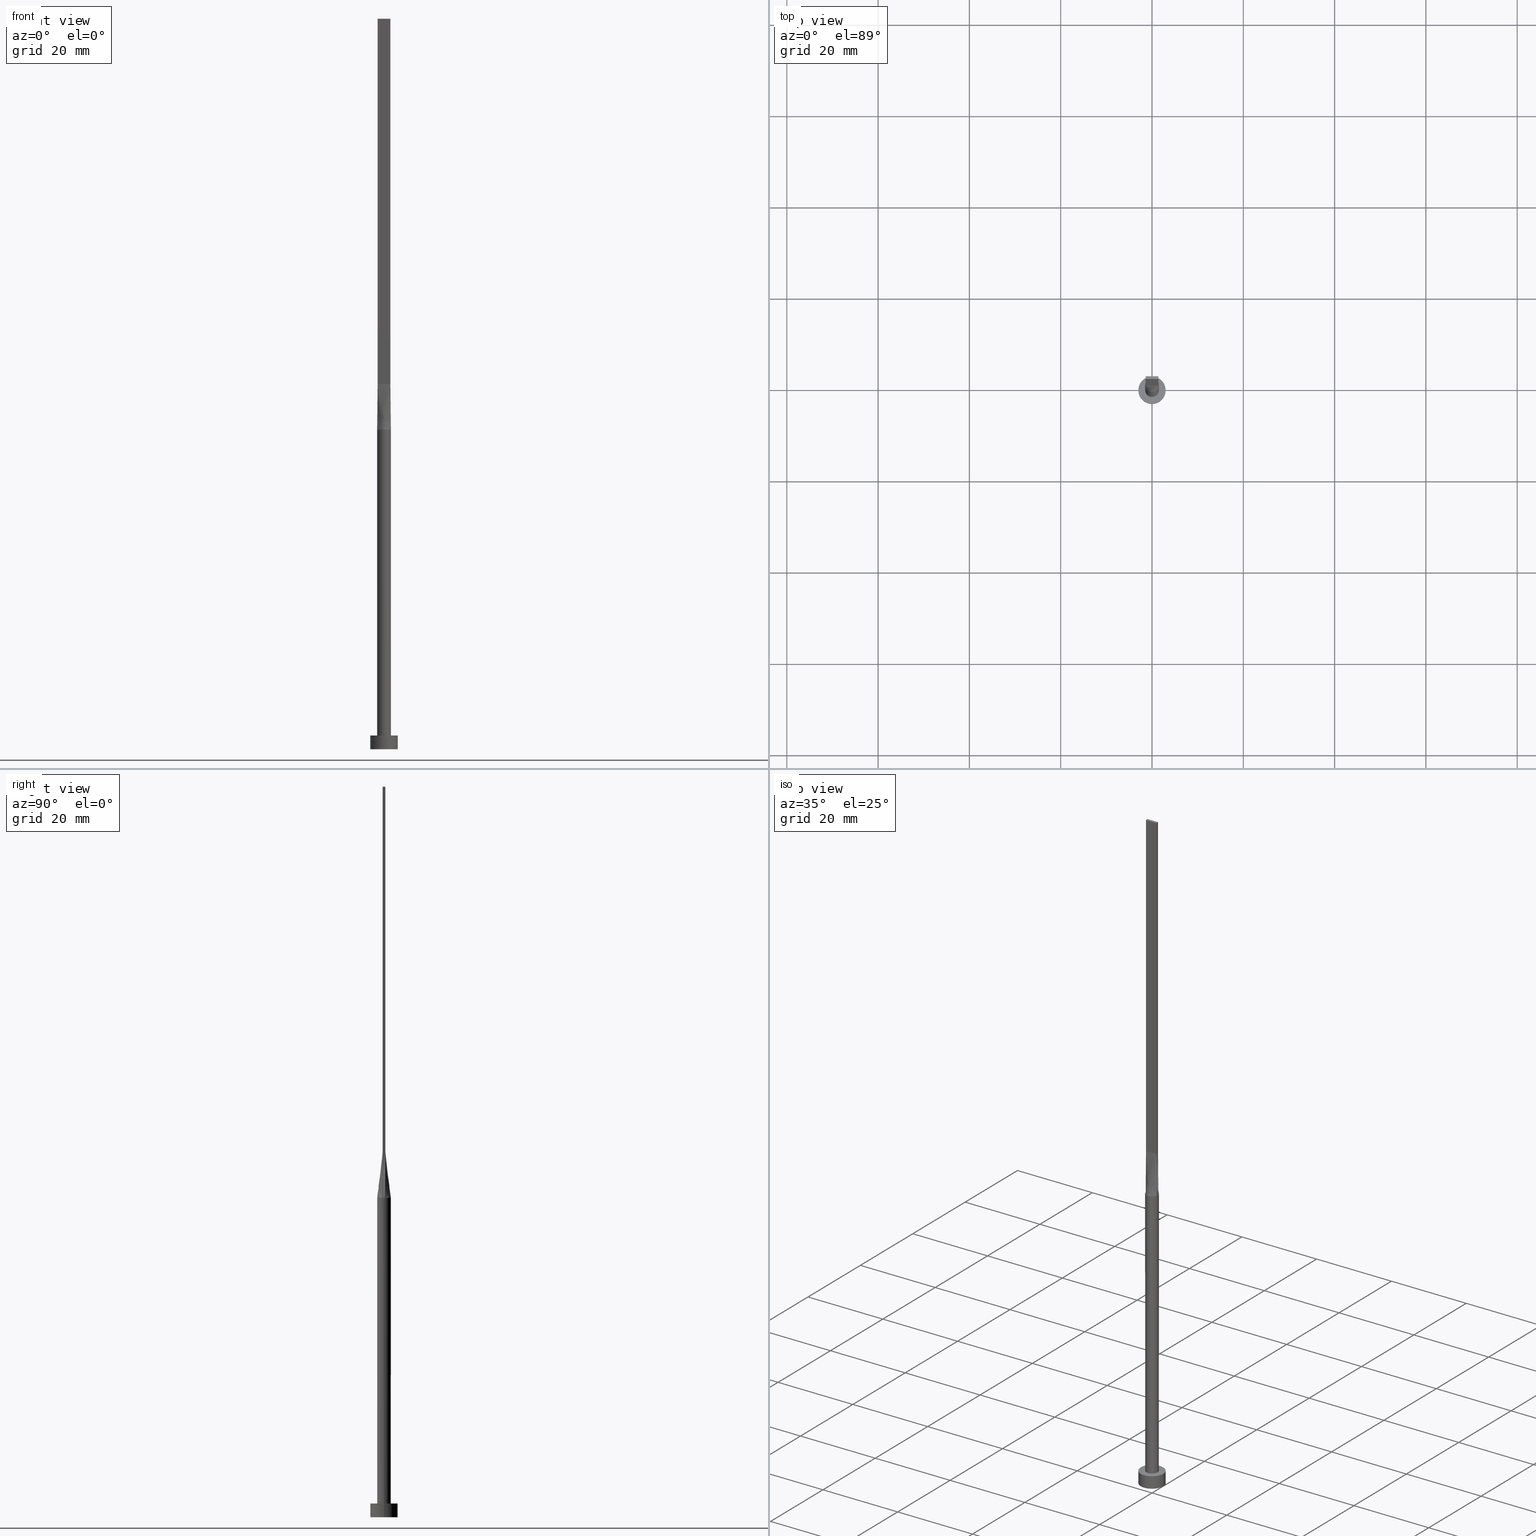
[diagram: canonical four-view strip — front | top / right | iso, engineering-drawing reading convention]
A machine part, canonical four-view strip (front | top / right | iso — engineering-drawing reading convention). The complete STEP part file that produces these views, byte-faithful:
ISO-10303-21;
HEADER;
FILE_DESCRIPTION (( 'STEP AP203' ),
    '1' );
FILE_NAME ('74a3.STEP',
    '2026-02-12T09:00:19',
    ( '' ),
    ( '' ),
    'SwSTEP 2.0',
    'SolidWorks 2019',
    '' );
FILE_SCHEMA (( 'CONFIG_CONTROL_DESIGN' ));
ENDSEC;

DATA;
#1 = DIRECTION ( 'NONE',  ( 0.000000000000000000, 0.000000000000000000, 1.000000000000000000 ) ) ;
#2 = CARTESIAN_POINT ( 'NONE',  ( 0.000000000000000000, 0.000000000000000000, 70.00000000000000000 ) ) ;
#3 = AXIS2_PLACEMENT_3D ( 'NONE', #159, #293, #203 ) ;
#4 = AXIS2_PLACEMENT_3D ( 'NONE', #22, #344, #518 ) ;
#5 = CARTESIAN_POINT ( 'NONE',  ( 1.466854622690809462, -0.3143260906982852099, 70.00000000000000000 ) ) ;
#6 = CARTESIAN_POINT ( 'NONE',  ( -1.399999999999999911, -0.2999999999999996003, 160.0000000000000000 ) ) ;
#7 = DIRECTION ( 'NONE',  ( 1.000000000000000000, 0.000000000000000000, 0.000000000000000000 ) ) ;
#8 = PLANE ( 'NONE',  #124 ) ;
#9 = LINE ( 'NONE', #222, #249 ) ;
#10 = ORIENTED_EDGE ( 'NONE', *, *, #274, .F. ) ;
#11 = CARTESIAN_POINT ( 'NONE',  ( 0.000000000000000000, 0.000000000000000000, 0.000000000000000000 ) ) ;
#12 = PRODUCT_DEFINITION ( 'NEZN�M�', '', #208, #236 ) ;
#13 = LINE ( 'NONE', #6, #500 ) ;
#14 = CARTESIAN_POINT ( 'NONE',  ( -1.399999999999999911, -0.2999999999999996003, 160.0000000000000000 ) ) ;
#15 = ORIENTED_EDGE ( 'NONE', *, *, #192, .F. ) ;
#16 = ADVANCED_FACE ( 'NONE', ( #35 ), #576, .T. ) ;
#17 = ORIENTED_EDGE ( 'NONE', *, *, #182, .T. ) ;
#18 = CYLINDRICAL_SURFACE ( 'NONE', #560, 3.000000000000000444 ) ;
#19 = CARTESIAN_POINT ( 'NONE',  ( 1.261673556793541540, 0.8246322331683844098, 70.00000000000000000 ) ) ;
#20 = CARTESIAN_POINT ( 'NONE',  ( -0.7614511870148455985, -1.306864626778803995, 70.00000000000000000 ) ) ;
#21 = EDGE_CURVE ( 'NONE', #86, #151, #352, .T. ) ;
#22 = CARTESIAN_POINT ( 'NONE',  ( 0.000000000000000000, 0.000000000000000000, 0.000000000000000000 ) ) ;
#23 = VECTOR ( 'NONE', #45, 1000.000000000000000 ) ;
#24 = CARTESIAN_POINT ( 'NONE',  ( -1.433351810558057160, 0.3071468165481554546, 75.00000000000001421 ) ) ;
#25 = VERTEX_POINT ( 'NONE', #525 ) ;
#26 = EDGE_CURVE ( 'NONE', #83, #178, #82, .T. ) ;
#27 = CARTESIAN_POINT ( 'NONE',  ( -1.399999999999999911, -0.2999999999999996003, 160.0000000000000000 ) ) ;
#28 = CARTESIAN_POINT ( 'NONE',  ( -1.261673556793542206, -0.8246322331683838547, 69.99999999999998579 ) ) ;
#29 = AXIS2_PLACEMENT_3D ( 'NONE', #302, #532, #257 ) ;
#30 = CARTESIAN_POINT ( 'NONE',  ( -1.398339371956843102, 0.5625704264602656712, 69.99999999999998579 ) ) ;
#31 = DIRECTION ( 'NONE',  ( 0.000000000000000000, 0.000000000000000000, 1.000000000000000000 ) ) ;
#32 = CC_DESIGN_SECURITY_CLASSIFICATION ( #181, ( #208 ) ) ;
#33 = APPROVAL_DATE_TIME ( #69, #523 ) ;
#34 = CIRCLE ( 'NONE', #508, 1.500000000000000222 ) ;
#35 = FACE_OUTER_BOUND ( 'NONE', #242, .T. ) ;
#36 = DIRECTION ( 'NONE',  ( -0.006670206908340748676, 0.001429330051787288574, 0.9999767324070110153 ) ) ;
#37 = APPLICATION_CONTEXT ( 'configuration controlled 3d designs of mechanical parts and assemblies' ) ;
#38 = CARTESIAN_POINT ( 'NONE',  ( 3.000000000000000444, 3.673940397442060361E-16, 3.000000000000000000 ) ) ;
#39 = ORIENTED_EDGE ( 'NONE', *, *, #220, .F. ) ;
#40 = CARTESIAN_POINT ( 'NONE',  ( -1.399999999999999689, 0.3000000000000002109, 160.0000000000000000 ) ) ;
#41 = ORIENTED_EDGE ( 'NONE', *, *, #192, .T. ) ;
#42 = DIRECTION ( 'NONE',  ( 1.000000000000000000, 0.000000000000000000, -0.000000000000000000 ) ) ;
#43 = EDGE_LOOP ( 'NONE', ( #218, #39, #103, #383 ) ) ;
#44 = ORIENTED_EDGE ( 'NONE', *, *, #400, .F. ) ;
#45 = DIRECTION ( 'NONE',  ( -3.614007241618349264E-16, -1.000000000000000000, 0.000000000000000000 ) ) ;
#46 = CARTESIAN_POINT ( 'NONE',  ( 0.4666666666666671737, -0.2999999999999997113, 79.99999999999998579 ) ) ;
#47 = CARTESIAN_POINT ( 'NONE',  ( 0.000000000000000000, 0.000000000000000000, 70.00000000000000000 ) ) ;
#48 = CARTESIAN_POINT ( 'NONE',  ( 0.000000000000000000, 0.000000000000000000, 70.00000000000000000 ) ) ;
#49 = CIRCLE ( 'NONE', #154, 3.000000000000000444 ) ;
#50 = CARTESIAN_POINT ( 'NONE',  ( -3.000000000000000444, 0.000000000000000000, 3.000000000000000000 ) ) ;
#51 = CARTESIAN_POINT ( 'NONE',  ( -1.466842056764351865, 0.3143233427268645186, 70.00000000000000000 ) ) ;
#52 = AXIS2_PLACEMENT_3D ( 'NONE', #409, #185, #187 ) ;
#53 = DATE_AND_TIME ( #454, #392 ) ;
#54 = DIRECTION ( 'NONE',  ( 1.000000000000000000, 0.000000000000000000, 0.000000000000000000 ) ) ;
#55 = LOCAL_TIME ( 10, 0, 19.00000000000000000, #272 ) ;
#56 = AXIS2_PLACEMENT_3D ( 'NONE', #88, #262, #213 ) ;
#57 = VERTEX_POINT ( 'NONE', #434 ) ;
#58 = APPLICATION_PROTOCOL_DEFINITION ( 'international standard', 'config_control_design', 1994, #464 ) ;
#59 = B_SPLINE_SURFACE_WITH_KNOTS ( 'NONE', 3, 1, ( 
 ( #535, #264 ),
 ( #118, #112 ),
 ( #571, #427 ),
 ( #19, #465 ),
 ( #514, #155 ),
 ( #292, #299 ),
 ( #162, #334 ),
 ( #336, #202 ),
 ( #158, #380 ),
 ( #429, #199 ),
 ( #474, #568 ),
 ( #206, #246 ),
 ( #421, #287 ),
 ( #297, #110 ),
 ( #67, #75 ),
 ( #30, #339 ),
 ( #390, #512 ),
 ( #470, #384 ) ),
 .UNSPECIFIED., .F., .F., .F.,
 ( 4, 2, 2, 2, 2, 2, 2, 2, 4 ),
 ( 2, 2 ),
 ( 0.000000000000000000, 0.1249999999999999445, 0.2499999999999998890, 0.3749999999999998890, 0.4999999999999998890, 0.6249999999999998890, 0.7500000000000000000, 0.8749999999999998890, 1.000000000000000000 ),
 ( 0.000000000000000000, 1.000000000000000000 ),
 .UNSPECIFIED. ) ;
#60 = PERSON_AND_ORGANIZATION ( #479, #234 ) ;
#61 = VERTEX_POINT ( 'NONE', #211 ) ;
#62 = ORIENTED_EDGE ( 'NONE', *, *, #179, .T. ) ;
#63 = MECHANICAL_CONTEXT ( 'NONE', #464, 'mechanical' ) ;
#64 = LINE ( 'NONE', #558, #81 ) ;
#65 = CARTESIAN_POINT ( 'NONE',  ( -0.4035854070682473038, -1.457676878506884988, 69.99999999999998579 ) ) ;
#66 = ADVANCED_FACE ( 'NONE', ( #395 ), #578, .F. ) ;
#67 = CARTESIAN_POINT ( 'NONE',  ( -1.261673556793542872, 0.8246322331683846318, 70.00000000000004263 ) ) ;
#68 = LINE ( 'NONE', #335, #105 ) ;
#69 = DATE_AND_TIME ( #74, #459 ) ;
#70 = FACE_OUTER_BOUND ( 'NONE', #43, .T. ) ;
#71 = CARTESIAN_POINT ( 'NONE',  ( 0.000000000000000000, 0.000000000000000000, 3.000000000000000000 ) ) ;
#72 = EDGE_LOOP ( 'NONE', ( #219, #548, #457, #10 ) ) ;
#73 = CC_DESIGN_PERSON_AND_ORGANIZATION_ASSIGNMENT ( #370, #549, ( #208 ) ) ;
#74 = CALENDAR_DATE ( 2026, 12, 2 ) ;
#75 = CARTESIAN_POINT ( 'NONE',  ( -0.9333333333333324600, 0.3000000000000002665, 80.00000000000000000 ) ) ;
#76 = CARTESIAN_POINT ( 'NONE',  ( -1.398339371956842880, -0.5625704264602655602, 69.99999999999998579 ) ) ;
#77 = PERSON_AND_ORGANIZATION_ROLE ( 'classification_officer' ) ;
#78 = EDGE_CURVE ( 'NONE', #463, #530, #101, .T. ) ;
#79 = VECTOR ( 'NONE', #466, 1000.000000000000000 ) ;
#80 = CARTESIAN_POINT ( 'NONE',  ( -1.399999999999999689, 0.1000000000000003386, 79.99999999999998579 ) ) ;
#81 = VECTOR ( 'NONE', #423, 1000.000000000000227 ) ;
#82 = LINE ( 'NONE', #38, #307 ) ;
#83 = VERTEX_POINT ( 'NONE', #171 ) ;
#84 = CARTESIAN_POINT ( 'NONE',  ( 1.466703621116114409, 0.3142936330963098102, 70.00000000000000000 ) ) ;
#85 = ADVANCED_FACE ( 'NONE', ( #355 ), #416, .T. ) ;
#86 = VERTEX_POINT ( 'NONE', #259 ) ;
#87 = CARTESIAN_POINT ( 'NONE',  ( 0.000000000000000000, 0.000000000000000000, 3.000000000000000000 ) ) ;
#88 = CARTESIAN_POINT ( 'NONE',  ( 1.399999999999999911, -0.2999999999999997669, 160.0000000000000000 ) ) ;
#89 = ORIENTED_EDGE ( 'NONE', *, *, #437, .F. ) ;
#90 = DIRECTION ( 'NONE',  ( 0.000000000000000000, 0.000000000000000000, 1.000000000000000000 ) ) ;
#91 = LINE ( 'NONE', #447, #255 ) ;
#92 = DIRECTION ( 'NONE',  ( 1.000000000000000000, -3.614007241618349264E-16, 0.000000000000000000 ) ) ;
#93 = DIRECTION ( 'NONE',  ( -0.000000000000000000, -0.000000000000000000, -1.000000000000000000 ) ) ;
#94 = LINE ( 'NONE', #494, #271 ) ;
#95 = CARTESIAN_POINT ( 'NONE',  ( 1.466703621116114409, -0.3142936330963098657, 70.00000000000000000 ) ) ;
#96 = CIRCLE ( 'NONE', #157, 3.000000000000000444 ) ;
#97 = COORDINATED_UNIVERSAL_TIME_OFFSET ( 1, 0, .AHEAD. ) ;
#98 = CARTESIAN_POINT ( 'NONE',  ( 0.4035854070682468042, 1.457676878506885654, 69.99999999999998579 ) ) ;
#99 = ORIENTED_EDGE ( 'NONE', *, *, #432, .T. ) ;
#100 = FACE_OUTER_BOUND ( 'NONE', #304, .T. ) ;
#101 = CIRCLE ( 'NONE', #279, 1.500000000000000222 ) ;
#102 = PERSON_AND_ORGANIZATION ( #479, #234 ) ;
#103 = ORIENTED_EDGE ( 'NONE', *, *, #556, .F. ) ;
#104 = CC_DESIGN_APPROVAL ( #388, ( #208 ) ) ;
#105 = VECTOR ( 'NONE', #515, 1000.000000000000000 ) ;
#106 = ORIENTED_EDGE ( 'NONE', *, *, #295, .T. ) ;
#107 =( LENGTH_UNIT ( ) NAMED_UNIT ( * ) SI_UNIT ( .MILLI., .METRE. ) );
#108 = CARTESIAN_POINT ( 'NONE',  ( -1.399999999999999689, 0.3000000000000002109, 160.0000000000000000 ) ) ;
#109 = CARTESIAN_POINT ( 'NONE',  ( -0.4666666666666662300, -0.2999999999999997113, 79.99999999999998579 ) ) ;
#110 = CARTESIAN_POINT ( 'NONE',  ( -0.8166666666666656527, 0.3000000000000002665, 80.00000000000000000 ) ) ;
#111 = CARTESIAN_POINT ( 'NONE',  ( 0.4035854070682468042, -1.457676878506885210, 70.00000000000000000 ) ) ;
#112 = CARTESIAN_POINT ( 'NONE',  ( 1.283333333333333437, 0.3000000000000002109, 80.00000000000000000 ) ) ;
#113 = CARTESIAN_POINT ( 'NONE',  ( 0.000000000000000000, 0.000000000000000000, 3.000000000000000000 ) ) ;
#114 = ORIENTED_EDGE ( 'NONE', *, *, #284, .F. ) ;
#115 = APPROVAL_STATUS ( 'not_yet_approved' ) ;
#116 = DIRECTION ( 'NONE',  ( 1.000000000000000000, 0.000000000000000000, 0.000000000000000000 ) ) ;
#117 = CARTESIAN_POINT ( 'NONE',  ( -1.399999999999999689, 0.3000000000000002109, 160.0000000000000000 ) ) ;
#118 = CARTESIAN_POINT ( 'NONE',  ( 1.441093865018553410, 0.4338058282182615244, 69.99999999999998579 ) ) ;
#119 = EDGE_CURVE ( 'NONE', #426, #86, #121, .T. ) ;
#120 = CARTESIAN_POINT ( 'NONE',  ( -1.499630450384406899, -0.1059273043530328529, 70.00000000000000000 ) ) ;
#121 = LINE ( 'NONE', #215, #566 ) ;
#122 = DIRECTION ( 'NONE',  ( -0.000000000000000000, -0.000000000000000000, -1.000000000000000000 ) ) ;
#123 = ORIENTED_EDGE ( 'NONE', *, *, #284, .T. ) ;
#124 = AXIS2_PLACEMENT_3D ( 'NONE', #198, #418, #153 ) ;
#125 = EDGE_CURVE ( 'NONE', #160, #373, #440, .T. ) ;
#126 = AXIS2_PLACEMENT_3D ( 'NONE', #27, #377, #467 ) ;
#127 = CARTESIAN_POINT ( 'NONE',  ( 1.499630450384406899, -0.1059273043530333108, 70.00000000000000000 ) ) ;
#128 = ADVANCED_FACE ( 'NONE', ( #399 ), #150, .T. ) ;
#129 = ORIENTED_EDGE ( 'NONE', *, *, #329, .F. ) ;
#130 = APPROVAL_PERSON_ORGANIZATION ( #102, #135, #229 ) ;
#131 = LINE ( 'NONE', #499, #529 ) ;
#132 = CLOSED_SHELL ( 'NONE', ( #328, #543, #140, #431, #458, #16, #228, #85, #128, #478, #394, #393, #491, #66, #570 ) ) ;
#133 = DIRECTION ( 'NONE',  ( -3.614007241618348278E-16, 1.000000000000000000, -0.000000000000000000 ) ) ;
#134 = ORIENTED_EDGE ( 'NONE', *, *, #376, .T. ) ;
#135 = APPROVAL ( #557, 'NEUR�EN�' ) ;
#136 = PLANE ( 'NONE',  #273 ) ;
#137 = APPROVAL_PERSON_ORGANIZATION ( #517, #523, #296 ) ;
#138 = CARTESIAN_POINT ( 'NONE',  ( 1.283333333333333437, -0.2999999999999997113, 79.99999999999998579 ) ) ;
#139 = DIRECTION ( 'NONE',  ( 3.614007241618349264E-16, 1.000000000000000000, 0.000000000000000000 ) ) ;
#140 = ADVANCED_FACE ( 'NONE', ( #468 ), #348, .T. ) ;
#141 = DIRECTION ( 'NONE',  ( 1.000000000000000000, 3.552713678800500929E-15, 0.000000000000000000 ) ) ;
#142 = FACE_OUTER_BOUND ( 'NONE', #439, .T. ) ;
#143 = CARTESIAN_POINT ( 'NONE',  ( -0.9173979595380679086, 1.199399801402030397, 69.99999999999998579 ) ) ;
#144 = LINE ( 'NONE', #312, #23 ) ;
#145 = CALENDAR_DATE ( 2026, 12, 2 ) ;
#146 = DIRECTION ( 'NONE',  ( -0.000000000000000000, -0.000000000000000000, -1.000000000000000000 ) ) ;
#147 = EDGE_LOOP ( 'NONE', ( #123, #260 ) ) ;
#148 =( NAMED_UNIT ( * ) SI_UNIT ( $, .STERADIAN. ) SOLID_ANGLE_UNIT ( ) );
#149 = CARTESIAN_POINT ( 'NONE',  ( 1.399999999999999911, -0.2999999999999997669, 80.00000000000000000 ) ) ;
#150 = B_SPLINE_SURFACE_WITH_KNOTS ( 'NONE', 3, 1, ( 
 ( #357, #488 ),
 ( #301, #212 ),
 ( #476, #80 ),
 ( #120, #424 ),
 ( #298, #207 ),
 ( #563, #340 ) ),
 .UNSPECIFIED., .F., .F., .F.,
 ( 4, 2, 4 ),
 ( 2, 2 ),
 ( 0.000000000000000000, 0.5000000000000000000, 1.000000000000000000 ),
 ( 0.000000000000000000, 1.000000000000000000 ),
 .UNSPECIFIED. ) ;
#151 = VERTEX_POINT ( 'NONE', #288 ) ;
#152 = ORIENTED_EDGE ( 'NONE', *, *, #502, .F. ) ;
#153 = DIRECTION ( 'NONE',  ( 1.000000000000000000, 0.000000000000000000, -0.000000000000000000 ) ) ;
#154 = AXIS2_PLACEMENT_3D ( 'NONE', #562, #164, #116 ) ;
#155 = CARTESIAN_POINT ( 'NONE',  ( 0.8166666666666674290, 0.3000000000000001554, 79.99999999999998579 ) ) ;
#156 = CARTESIAN_POINT ( 'NONE',  ( 0.2021039475585061640, -1.499999999999999778, 70.00000000000001421 ) ) ;
#157 = AXIS2_PLACEMENT_3D ( 'NONE', #406, #1, #320 ) ;
#158 = CARTESIAN_POINT ( 'NONE',  ( 0.2021039475585061640, 1.500000000000000222, 70.00000000000001421 ) ) ;
#159 = CARTESIAN_POINT ( 'NONE',  ( 0.000000000000000000, 0.000000000000000000, 3.000000000000000000 ) ) ;
#160 = VERTEX_POINT ( 'NONE', #117 ) ;
#161 = CALENDAR_DATE ( 2026, 12, 2 ) ;
#162 = CARTESIAN_POINT ( 'NONE',  ( 0.7614511870148451544, 1.306864626778804883, 70.00000000000000000 ) ) ;
#163 = CARTESIAN_POINT ( 'NONE',  ( -1.167251067653077845, -0.9579686032593084377, 70.00000000000000000 ) ) ;
#164 = DIRECTION ( 'NONE',  ( 0.000000000000000000, 0.000000000000000000, 1.000000000000000000 ) ) ;
#165 = CARTESIAN_POINT ( 'NONE',  ( -0.5833333333333329263, -0.2999999999999996558, 79.99999999999998579 ) ) ;
#166 = CARTESIAN_POINT ( 'NONE',  ( 1.466703621116114409, -0.3142936330963101987, 70.00000000000000000 ) ) ;
#167 = ADVANCED_BREP_SHAPE_REPRESENTATION ( '74a3', ( #544, #278 ), #385 ) ;
#168 = CARTESIAN_POINT ( 'NONE',  ( 1.499630450384406899, 0.1059273043530329361, 70.00000000000000000 ) ) ;
#169 = EDGE_LOOP ( 'NONE', ( #360, #99, #62, #575, #89, #524 ) ) ;
#170 = EDGE_CURVE ( 'NONE', #331, #373, #521, .T. ) ;
#171 = CARTESIAN_POINT ( 'NONE',  ( 3.000000000000000444, 3.673940397442060361E-16, 3.000000000000000000 ) ) ;
#172 = CIRCLE ( 'NONE', #425, 3.000000000000000444 ) ;
#173 = EDGE_CURVE ( 'NONE', #438, #486, #422, .T. ) ;
#174 = ORIENTED_EDGE ( 'NONE', *, *, #21, .F. ) ;
#175 = CARTESIAN_POINT ( 'NONE',  ( 1.488654840628309328, -0.2118546087060664274, 70.00000000000000000 ) ) ;
#176 = CC_DESIGN_PERSON_AND_ORGANIZATION_ASSIGNMENT ( #412, #191, ( #208 ) ) ;
#177 = PLANE ( 'NONE',  #230 ) ;
#178 = VERTEX_POINT ( 'NONE', #513 ) ;
#179 = EDGE_CURVE ( 'NONE', #197, #283, #183, .T. ) ;
#180 = CARTESIAN_POINT ( 'NONE',  ( -1.399999999999999689, 0.3000000000000002109, 160.0000000000000000 ) ) ;
#181 = SECURITY_CLASSIFICATION ( '', '', #201 ) ;
#182 = EDGE_CURVE ( 'NONE', #414, #57, #245, .T. ) ;
#183 = CIRCLE ( 'NONE', #3, 1.500000000000000222 ) ;
#184 = DIRECTION ( 'NONE',  ( 0.000000000000000000, 0.000000000000000000, 1.000000000000000000 ) ) ;
#185 = DIRECTION ( 'NONE',  ( 0.000000000000000000, 0.000000000000000000, 1.000000000000000000 ) ) ;
#186 = CARTESIAN_POINT ( 'NONE',  ( 0.7614511870148451544, -1.306864626778804439, 69.99999999999998579 ) ) ;
#187 = DIRECTION ( 'NONE',  ( 1.000000000000000000, 0.000000000000000000, 0.000000000000000000 ) ) ;
#188 =( NAMED_UNIT ( * ) PLANE_ANGLE_UNIT ( ) SI_UNIT ( $, .RADIAN. ) );
#189 = DIRECTION ( 'NONE',  ( -0.006670206908340770360, -0.001429330051787239785, 0.9999767324070110153 ) ) ;
#190 = ORIENTED_EDGE ( 'NONE', *, *, #173, .F. ) ;
#191 = PERSON_AND_ORGANIZATION_ROLE ( 'creator' ) ;
#192 = EDGE_CURVE ( 'NONE', #283, #197, #538, .T. ) ;
#193 = CARTESIAN_POINT ( 'NONE',  ( 0.2333333333333338366, -0.2999999999999997113, 79.99999999999998579 ) ) ;
#194 = DATE_AND_TIME ( #145, #456 ) ;
#195 = EDGE_LOOP ( 'NONE', ( #294, #506, #444, #258 ) ) ;
#196 = PERSON_AND_ORGANIZATION ( #479, #234 ) ;
#197 = VERTEX_POINT ( 'NONE', #569 ) ;
#198 = CARTESIAN_POINT ( 'NONE',  ( 0.000000000000000000, 0.000000000000000000, 160.0000000000000000 ) ) ;
#199 = CARTESIAN_POINT ( 'NONE',  ( -0.1166666666666652252, 0.3000000000000001554, 79.99999999999998579 ) ) ;
#200 = CARTESIAN_POINT ( 'NONE',  ( -0.2333333333333328374, -0.2999999999999997113, 79.99999999999998579 ) ) ;
#201 = SECURITY_CLASSIFICATION_LEVEL ( 'unclassified' ) ;
#202 = CARTESIAN_POINT ( 'NONE',  ( 0.2333333333333347526, 0.3000000000000001554, 79.99999999999998579 ) ) ;
#203 = DIRECTION ( 'NONE',  ( 1.000000000000000000, 0.000000000000000000, 0.000000000000000000 ) ) ;
#204 = AXIS2_PLACEMENT_3D ( 'NONE', #221, #450, #364 ) ;
#205 = ORIENTED_EDGE ( 'NONE', *, *, #285, .F. ) ;
#206 = CARTESIAN_POINT ( 'NONE',  ( -0.7614511870148460426, 1.306864626778804661, 70.00000000000000000 ) ) ;
#207 = CARTESIAN_POINT ( 'NONE',  ( -1.399999999999999911, -0.1999999999999995948, 79.99999999999998579 ) ) ;
#208 = PRODUCT_DEFINITION_FORMATION_WITH_SPECIFIED_SOURCE ( 'LIBOVOLN�', '', #461, .NOT_KNOWN. ) ;
#209 = LINE ( 'NONE', #347, #407 ) ;
#210 = CARTESIAN_POINT ( 'NONE',  ( -1.441093865018553632, -0.4338058282182608583, 70.00000000000001421 ) ) ;
#211 = CARTESIAN_POINT ( 'NONE',  ( -1.399999999999999911, -0.2999999999999996003, 160.0000000000000000 ) ) ;
#212 = CARTESIAN_POINT ( 'NONE',  ( -1.399999999999999689, 0.2000000000000002887, 79.99999999999998579 ) ) ;
#213 = DIRECTION ( 'NONE',  ( 3.614007241618348278E-16, -1.000000000000000000, 0.000000000000000000 ) ) ;
#214 = VERTEX_POINT ( 'NONE', #253 ) ;
#215 = CARTESIAN_POINT ( 'NONE',  ( 1.433351810558057160, -0.3071468165481548440, 75.00000000000001421 ) ) ;
#216 = ORIENTED_EDGE ( 'NONE', *, *, #179, .F. ) ;
#217 = CARTESIAN_POINT ( 'NONE',  ( -1.466842056764351865, 0.3143233427268645186, 70.00000000000000000 ) ) ;
#218 = ORIENTED_EDGE ( 'NONE', *, *, #329, .T. ) ;
#219 = ORIENTED_EDGE ( 'NONE', *, *, #238, .T. ) ;
#220 = EDGE_CURVE ( 'NONE', #438, #86, #68, .T. ) ;
#221 = CARTESIAN_POINT ( 'NONE',  ( 1.399999999999999689, 0.3000000000000002109, 160.0000000000000000 ) ) ;
#222 = CARTESIAN_POINT ( 'NONE',  ( 1.433351810558057160, 0.3071468165481550106, 75.00000000000001421 ) ) ;
#223 = FACE_OUTER_BOUND ( 'NONE', #147, .T. ) ;
#224 = DIRECTION ( 'NONE',  ( 1.000000000000000000, 0.000000000000000000, 0.000000000000000000 ) ) ;
#225 = VECTOR ( 'NONE', #332, 1000.000000000000000 ) ;
#226 = UNCERTAINTY_MEASURE_WITH_UNIT (LENGTH_MEASURE( 1.000000000000000082E-05 ), #107, 'distance_accuracy_value', 'NONE');
#227 = DIRECTION ( 'NONE',  ( 0.000000000000000000, 0.000000000000000000, 1.000000000000000000 ) ) ;
#228 = ADVANCED_FACE ( 'NONE', ( #382 ), #239, .T. ) ;
#229 = APPROVAL_ROLE ( '' ) ;
#230 = AXIS2_PLACEMENT_3D ( 'NONE', #87, #227, #541 ) ;
#231 = CARTESIAN_POINT ( 'NONE',  ( 0.9173979595380679086, 1.199399801402031285, 70.00000000000001421 ) ) ;
#232 = EDGE_CURVE ( 'NONE', #25, #214, #34, .T. ) ;
#233 = APPROVAL_DATE_TIME ( #53, #388 ) ;
#234 = ORGANIZATION ( 'NEUR�EN�', 'NEUR�EN�', '' ) ;
#235 = CARTESIAN_POINT ( 'NONE',  ( 0.7614511870148451544, 1.306864626778804883, 70.00000000000000000 ) ) ;
#236 = DESIGN_CONTEXT ( 'detailed design', #37, 'design' ) ;
#237 = ORIENTED_EDGE ( 'NONE', *, *, #351, .F. ) ;
#238 = EDGE_CURVE ( 'NONE', #530, #331, #433, .T. ) ;
#239 = B_SPLINE_SURFACE_WITH_KNOTS ( 'NONE', 3, 1, ( 
 ( #251, #428 ),
 ( #210, #391 ),
 ( #76, #510 ),
 ( #28, #387 ),
 ( #163, #519 ),
 ( #572, #165 ),
 ( #20, #109 ),
 ( #65, #200 ),
 ( #378, #559 ),
 ( #156, #337 ),
 ( #111, #193 ),
 ( #186, #46 ),
 ( #313, #275 ),
 ( #550, #547 ),
 ( #498, #371 ),
 ( #265, #319 ),
 ( #368, #138 ),
 ( #95, #149 ) ),
 .UNSPECIFIED., .F., .F., .F.,
 ( 4, 2, 2, 2, 2, 2, 2, 2, 4 ),
 ( 2, 2 ),
 ( 0.000000000000000000, 0.1250000000000000000, 0.2500000000000000000, 0.3750000000000000000, 0.5000000000000000000, 0.6250000000000000000, 0.7500000000000000000, 0.8750000000000000000, 1.000000000000000000 ),
 ( 0.000000000000000000, 1.000000000000000000 ),
 .UNSPECIFIED. ) ;
#240 = CARTESIAN_POINT ( 'NONE',  ( 0.000000000000000000, 0.000000000000000000, 3.000000000000000000 ) ) ;
#241 = EDGE_LOOP ( 'NONE', ( #263, #205, #441, #417 ) ) ;
#242 = EDGE_LOOP ( 'NONE', ( #369, #419, #44, #505, #581, #41 ) ) ;
#243 = DIRECTION ( 'NONE',  ( 0.000000000000000000, 0.000000000000000000, 1.000000000000000000 ) ) ;
#244 = DIRECTION ( 'NONE',  ( -3.614007241618349264E-16, -1.000000000000000000, 0.000000000000000000 ) ) ;
#245 = LINE ( 'NONE', #471, #79 ) ;
#246 = CARTESIAN_POINT ( 'NONE',  ( -0.4666666666666651198, 0.3000000000000001554, 79.99999999999998579 ) ) ;
#247 = DIRECTION ( 'NONE',  ( -0.000000000000000000, -0.000000000000000000, -1.000000000000000000 ) ) ;
#248 = VERTEX_POINT ( 'NONE', #413 ) ;
#249 = VECTOR ( 'NONE', #189, 1000.000000000000227 ) ;
#250 = CARTESIAN_POINT ( 'NONE',  ( 1.399999999999999689, 0.3000000000000002109, 160.0000000000000000 ) ) ;
#251 = CARTESIAN_POINT ( 'NONE',  ( -1.466703621116114409, -0.3142936330963096436, 70.00000000000000000 ) ) ;
#252 = CARTESIAN_POINT ( 'NONE',  ( 1.466825456746648992, 0.3143198820638501978, 70.00000000000000000 ) ) ;
#253 = CARTESIAN_POINT ( 'NONE',  ( -1.466837926445876628, -0.3143226152917824034, 70.00000000000000000 ) ) ;
#254 = ORIENTED_EDGE ( 'NONE', *, *, #119, .T. ) ;
#255 = VECTOR ( 'NONE', #146, 1000.000000000000000 ) ;
#256 = CARTESIAN_POINT ( 'NONE',  ( 1.399999999999999911, -0.2999999999999997669, 80.00000000000000000 ) ) ;
#257 = DIRECTION ( 'NONE',  ( -1.000000000000000000, 0.000000000000000000, 0.000000000000000000 ) ) ;
#258 = ORIENTED_EDGE ( 'NONE', *, *, #182, .F. ) ;
#259 = CARTESIAN_POINT ( 'NONE',  ( 1.399999999999999911, -0.2999999999999997669, 80.00000000000000000 ) ) ;
#260 = ORIENTED_EDGE ( 'NONE', *, *, #511, .T. ) ;
#261 = FACE_OUTER_BOUND ( 'NONE', #401, .T. ) ;
#262 = DIRECTION ( 'NONE',  ( -1.000000000000000000, -3.614007241618348278E-16, 0.000000000000000000 ) ) ;
#263 = ORIENTED_EDGE ( 'NONE', *, *, #341, .T. ) ;
#264 = CARTESIAN_POINT ( 'NONE',  ( 1.399999999999999689, 0.3000000000000002109, 80.00000000000000000 ) ) ;
#265 = CARTESIAN_POINT ( 'NONE',  ( 1.398339371956842880, -0.5625704264602661153, 69.99999999999998579 ) ) ;
#266 = FACE_BOUND ( 'NONE', #526, .T. ) ;
#267 = CARTESIAN_POINT ( 'NONE',  ( 0.000000000000000000, 0.000000000000000000, 3.000000000000000000 ) ) ;
#268 = EDGE_CURVE ( 'NONE', #486, #151, #91, .T. ) ;
#269 = DIRECTION ( 'NONE',  ( -1.000000000000000000, -0.000000000000000000, -0.000000000000000000 ) ) ;
#270 = CARTESIAN_POINT ( 'NONE',  ( -0.4035854070682471928, 1.457676878506885432, 70.00000000000000000 ) ) ;
#271 = VECTOR ( 'NONE', #269, 1000.000000000000000 ) ;
#272 = COORDINATED_UNIVERSAL_TIME_OFFSET ( 1, 0, .AHEAD. ) ;
#273 = AXIS2_PLACEMENT_3D ( 'NONE', #180, #92, #139 ) ;
#274 = EDGE_CURVE ( 'NONE', #530, #151, #9, .T. ) ;
#275 = CARTESIAN_POINT ( 'NONE',  ( 0.5833333333333337034, -0.2999999999999997113, 79.99999999999998579 ) ) ;
#276 = CC_DESIGN_PERSON_AND_ORGANIZATION_ASSIGNMENT ( #196, #367, ( #12 ) ) ;
#277 = ORIENTED_EDGE ( 'NONE', *, *, #400, .T. ) ;
#278 = AXIS2_PLACEMENT_3D ( 'NONE', #11, #243, #451 ) ;
#279 = AXIS2_PLACEMENT_3D ( 'NONE', #397, #573, #480 ) ;
#280 = CALENDAR_DATE ( 2026, 12, 2 ) ;
#281 = LOCAL_TIME ( 10, 0, 19.00000000000000000, #389 ) ;
#282 = AXIS2_PLACEMENT_3D ( 'NONE', #71, #31, #300 ) ;
#283 = VERTEX_POINT ( 'NONE', #316 ) ;
#284 = EDGE_CURVE ( 'NONE', #414, #83, #172, .T. ) ;
#285 = EDGE_CURVE ( 'NONE', #61, #248, #13, .T. ) ;
#286 = ORIENTED_EDGE ( 'NONE', *, *, #268, .F. ) ;
#287 = CARTESIAN_POINT ( 'NONE',  ( -0.5833333333333319271, 0.3000000000000002109, 79.99999999999998579 ) ) ;
#288 = CARTESIAN_POINT ( 'NONE',  ( 1.399999999999999689, 0.3000000000000002109, 80.00000000000000000 ) ) ;
#289 = PERSON_AND_ORGANIZATION ( #479, #234 ) ;
#290 = PLANE ( 'NONE',  #126 ) ;
#291 = DIRECTION ( 'NONE',  ( -1.000000000000000000, 0.000000000000000000, 0.000000000000000000 ) ) ;
#292 = CARTESIAN_POINT ( 'NONE',  ( 0.9173979595380679086, 1.199399801402031285, 70.00000000000001421 ) ) ;
#293 = DIRECTION ( 'NONE',  ( 0.000000000000000000, 0.000000000000000000, 1.000000000000000000 ) ) ;
#294 = ORIENTED_EDGE ( 'NONE', *, *, #511, .F. ) ;
#295 = EDGE_CURVE ( 'NONE', #426, #463, #577, .T. ) ;
#296 = APPROVAL_ROLE ( '' ) ;
#297 = CARTESIAN_POINT ( 'NONE',  ( -1.167251067653078289, 0.9579686032593087708, 70.00000000000000000 ) ) ;
#298 = CARTESIAN_POINT ( 'NONE',  ( -1.488654840628309328, -0.2118546087060659000, 70.00000000000000000 ) ) ;
#299 = CARTESIAN_POINT ( 'NONE',  ( 0.5833333333333345916, 0.3000000000000001554, 79.99999999999998579 ) ) ;
#300 = DIRECTION ( 'NONE',  ( 1.000000000000000000, 0.000000000000000000, 0.000000000000000000 ) ) ;
#301 = CARTESIAN_POINT ( 'NONE',  ( -1.488654840628309328, 0.2118546087060662608, 70.00000000000000000 ) ) ;
#302 = CARTESIAN_POINT ( 'NONE',  ( 0.000000000000000000, 0.000000000000000000, 70.00000000000000000 ) ) ;
#303 = CIRCLE ( 'NONE', #4, 3.000000000000000444 ) ;
#304 = EDGE_LOOP ( 'NONE', ( #134, #396, #564, #308 ) ) ;
#305 = CIRCLE ( 'NONE', #52, 1.500000000000000222 ) ;
#306 = CARTESIAN_POINT ( 'NONE',  ( 1.399999999999999689, 0.1000000000000001166, 79.99999999999998579 ) ) ;
#307 = VECTOR ( 'NONE', #122, 1000.000000000000000 ) ;
#308 = ORIENTED_EDGE ( 'NONE', *, *, #173, .T. ) ;
#309 = DIRECTION ( 'NONE',  ( -1.000000000000000000, 0.000000000000000000, 0.000000000000000000 ) ) ;
#310 = DIRECTION ( 'NONE',  ( -0.000000000000000000, -0.000000000000000000, -1.000000000000000000 ) ) ;
#311 = ORIENTED_EDGE ( 'NONE', *, *, #125, .F. ) ;
#312 = CARTESIAN_POINT ( 'NONE',  ( -1.399999999999999689, 0.3000000000000002109, 80.00000000000000000 ) ) ;
#313 = CARTESIAN_POINT ( 'NONE',  ( 0.9173979595380676866, -1.199399801402031063, 70.00000000000001421 ) ) ;
#314 = DIRECTION ( 'NONE',  ( -0.000000000000000000, -0.000000000000000000, -1.000000000000000000 ) ) ;
#315 = PRODUCT_RELATED_PRODUCT_CATEGORY ( 'detail', '', ( #461 ) ) ;
#316 = CARTESIAN_POINT ( 'NONE',  ( -1.500000000000000222, 0.000000000000000000, 3.000000000000000000 ) ) ;
#317 = DIRECTION ( 'NONE',  ( -0.000000000000000000, -0.000000000000000000, -1.000000000000000000 ) ) ;
#318 = DATE_AND_TIME ( #280, #55 ) ;
#319 = CARTESIAN_POINT ( 'NONE',  ( 1.166666666666666963, -0.2999999999999997113, 79.99999999999998579 ) ) ;
#320 = DIRECTION ( 'NONE',  ( 1.000000000000000000, 0.000000000000000000, 0.000000000000000000 ) ) ;
#321 = FACE_OUTER_BOUND ( 'NONE', #195, .T. ) ;
#322 = CARTESIAN_POINT ( 'NONE',  ( -1.167251067653078289, 0.9579686032593087708, 70.00000000000000000 ) ) ;
#323 = AXIS2_PLACEMENT_3D ( 'NONE', #2, #540, #141 ) ;
#324 = ORIENTED_EDGE ( 'NONE', *, *, #341, .F. ) ;
#325 = APPROVAL_ROLE ( '' ) ;
#326 = CARTESIAN_POINT ( 'NONE',  ( 0.000000000000000000, 0.000000000000000000, 70.00000000000000000 ) ) ;
#327 = PRODUCT_DEFINITION_SHAPE ( 'NONE', 'NONE',  #12 ) ;
#328 = ADVANCED_FACE ( 'NONE', ( #495 ), #449, .T. ) ;
#329 = EDGE_CURVE ( 'NONE', #248, #86, #531, .T. ) ;
#330 = ORIENTED_EDGE ( 'NONE', *, *, #78, .T. ) ;
#331 = VERTEX_POINT ( 'NONE', #217 ) ;
#332 = DIRECTION ( 'NONE',  ( 1.000000000000000000, -5.808225924029488744E-17, 0.000000000000000000 ) ) ;
#333 = VECTOR ( 'NONE', #430, 1000.000000000000000 ) ;
#334 = CARTESIAN_POINT ( 'NONE',  ( 0.4666666666666679508, 0.3000000000000001554, 79.99999999999998579 ) ) ;
#335 = CARTESIAN_POINT ( 'NONE',  ( 1.399999999999999911, -0.2999999999999997669, 160.0000000000000000 ) ) ;
#336 = CARTESIAN_POINT ( 'NONE',  ( 0.4035854070682468042, 1.457676878506885654, 69.99999999999998579 ) ) ;
#337 = CARTESIAN_POINT ( 'NONE',  ( 0.1166666666666671959, -0.2999999999999997113, 79.99999999999998579 ) ) ;
#338 = EDGE_CURVE ( 'NONE', #151, #373, #94, .T. ) ;
#339 = CARTESIAN_POINT ( 'NONE',  ( -1.166666666666666075, 0.3000000000000002665, 80.00000000000000000 ) ) ;
#340 = CARTESIAN_POINT ( 'NONE',  ( -1.399999999999999911, -0.2999999999999996558, 80.00000000000000000 ) ) ;
#341 = EDGE_CURVE ( 'NONE', #373, #248, #144, .T. ) ;
#342 = ORIENTED_EDGE ( 'NONE', *, *, #338, .T. ) ;
#343 = DATE_TIME_ROLE ( 'classification_date' ) ;
#344 = DIRECTION ( 'NONE',  ( 0.000000000000000000, 0.000000000000000000, 1.000000000000000000 ) ) ;
#345 = DIRECTION ( 'NONE',  ( 0.006670206908340748676, -0.001429330051787326304, 0.9999767324070110153 ) ) ;
#346 = CC_DESIGN_PERSON_AND_ORGANIZATION_ASSIGNMENT ( #420, #415, ( #461 ) ) ;
#347 = CARTESIAN_POINT ( 'NONE',  ( -1.500000000000000222, 0.000000000000000000, 70.00000000000000000 ) ) ;
#348 = CYLINDRICAL_SURFACE ( 'NONE', #361, 3.000000000000000444 ) ;
#349 = CARTESIAN_POINT ( 'NONE',  ( 1.399999999999999911, -0.1999999999999998168, 79.99999999999998579 ) ) ;
#350 = ORIENTED_EDGE ( 'NONE', *, *, #232, .T. ) ;
#351 = EDGE_CURVE ( 'NONE', #178, #57, #96, .T. ) ;
#352 = LINE ( 'NONE', #574, #358 ) ;
#353 = EDGE_LOOP ( 'NONE', ( #481, #114, #17, #477 ) ) ;
#354 = AXIS2_PLACEMENT_3D ( 'NONE', #48, #314, #496 ) ;
#355 = FACE_OUTER_BOUND ( 'NONE', #472, .T. ) ;
#356 = ORIENTED_EDGE ( 'NONE', *, *, #437, .T. ) ;
#357 = CARTESIAN_POINT ( 'NONE',  ( -1.466703621116114409, 0.3142936330963100322, 70.00000000000000000 ) ) ;
#358 = VECTOR ( 'NONE', #133, 1000.000000000000000 ) ;
#359 = CARTESIAN_POINT ( 'NONE',  ( 1.399999999999999911, -0.2999999999999997669, 160.0000000000000000 ) ) ;
#360 = ORIENTED_EDGE ( 'NONE', *, *, #78, .F. ) ;
#361 = AXIS2_PLACEMENT_3D ( 'NONE', #113, #247, #291 ) ;
#362 = FACE_OUTER_BOUND ( 'NONE', #241, .T. ) ;
#363 = CARTESIAN_POINT ( 'NONE',  ( -0.7614511870148460426, 1.306864626778804661, 70.00000000000000000 ) ) ;
#364 = DIRECTION ( 'NONE',  ( 0.000000000000000000, -0.000000000000000000, -1.000000000000000000 ) ) ;
#365 = CARTESIAN_POINT ( 'NONE',  ( -0.2021039475585064971, 1.499999999999999556, 70.00000000000001421 ) ) ;
#366 = DIRECTION ( 'NONE',  ( 1.000000000000000000, -5.808225924029488744E-17, 0.000000000000000000 ) ) ;
#367 = PERSON_AND_ORGANIZATION_ROLE ( 'creator' ) ;
#368 = CARTESIAN_POINT ( 'NONE',  ( 1.441093865018553410, -0.4338058282182614689, 70.00000000000001421 ) ) ;
#369 = ORIENTED_EDGE ( 'NONE', *, *, #432, .F. ) ;
#370 = PERSON_AND_ORGANIZATION ( #479, #234 ) ;
#371 = CARTESIAN_POINT ( 'NONE',  ( 0.9333333333333337922, -0.2999999999999997113, 79.99999999999998579 ) ) ;
#372 = ORIENTED_EDGE ( 'NONE', *, *, #268, .T. ) ;
#373 = VERTEX_POINT ( 'NONE', #448 ) ;
#374 = APPROVAL_STATUS ( 'not_yet_approved' ) ;
#375 = APPLICATION_PROTOCOL_DEFINITION ( 'international standard', 'config_control_design', 1994, #37 ) ;
#376 = EDGE_CURVE ( 'NONE', #486, #160, #131, .T. ) ;
#377 = DIRECTION ( 'NONE',  ( 5.808225924029488744E-17, 1.000000000000000000, -0.000000000000000000 ) ) ;
#378 = CARTESIAN_POINT ( 'NONE',  ( -0.2021039475585066081, -1.499999999999999778, 70.00000000000002842 ) ) ;
#379 = VECTOR ( 'NONE', #244, 1000.000000000000000 ) ;
#380 = CARTESIAN_POINT ( 'NONE',  ( 0.1166666666666680424, 0.3000000000000001554, 79.99999999999998579 ) ) ;
#381 = AXIS2_PLACEMENT_3D ( 'NONE', #442, #90, #42 ) ;
#382 = FACE_OUTER_BOUND ( 'NONE', #533, .T. ) ;
#383 = ORIENTED_EDGE ( 'NONE', *, *, #285, .T. ) ;
#384 = CARTESIAN_POINT ( 'NONE',  ( -1.399999999999999689, 0.3000000000000002109, 80.00000000000000000 ) ) ;
#385 =( GEOMETRIC_REPRESENTATION_CONTEXT ( 3 ) GLOBAL_UNCERTAINTY_ASSIGNED_CONTEXT ( ( #226 ) ) GLOBAL_UNIT_ASSIGNED_CONTEXT ( ( #107, #188, #148 ) ) REPRESENTATION_CONTEXT ( 'NONE', 'WORKASPACE' ) );
#386 = VECTOR ( 'NONE', #310, 1000.000000000000000 ) ;
#387 = CARTESIAN_POINT ( 'NONE',  ( -0.9333333333333329040, -0.2999999999999996003, 79.99999999999998579 ) ) ;
#388 = APPROVAL ( #374, 'NEUR�EN�' ) ;
#389 = COORDINATED_UNIVERSAL_TIME_OFFSET ( 1, 0, .AHEAD. ) ;
#390 = CARTESIAN_POINT ( 'NONE',  ( -1.441093865018553410, 0.4338058282182611913, 69.99999999999998579 ) ) ;
#391 = CARTESIAN_POINT ( 'NONE',  ( -1.283333333333333215, -0.2999999999999996003, 79.99999999999998579 ) ) ;
#392 = LOCAL_TIME ( 10, 0, 19.00000000000000000, #97 ) ;
#393 = ADVANCED_FACE ( 'NONE', ( #362 ), #136, .F. ) ;
#394 = ADVANCED_FACE ( 'NONE', ( #142 ), #490, .F. ) ;
#395 = FACE_OUTER_BOUND ( 'NONE', #553, .T. ) ;
#396 = ORIENTED_EDGE ( 'NONE', *, *, #536, .T. ) ;
#397 = CARTESIAN_POINT ( 'NONE',  ( 0.000000000000000000, 0.000000000000000000, 70.00000000000000000 ) ) ;
#398 = ORIENTED_EDGE ( 'NONE', *, *, #170, .F. ) ;
#399 = FACE_OUTER_BOUND ( 'NONE', #445, .T. ) ;
#400 = EDGE_CURVE ( 'NONE', #214, #426, #482, .T. ) ;
#401 = EDGE_LOOP ( 'NONE', ( #152, #237 ) ) ;
#402 = CARTESIAN_POINT ( 'NONE',  ( 1.499815225192203672, 3.473831651285826596E-16, 70.00000000000000000 ) ) ;
#403 = ORIENTED_EDGE ( 'NONE', *, *, #119, .F. ) ;
#404 = LINE ( 'NONE', #487, #561 ) ;
#405 = DIRECTION ( 'NONE',  ( 0.000000000000000000, 0.000000000000000000, 1.000000000000000000 ) ) ;
#406 = CARTESIAN_POINT ( 'NONE',  ( 0.000000000000000000, 0.000000000000000000, 0.000000000000000000 ) ) ;
#407 = VECTOR ( 'NONE', #520, 1000.000000000000000 ) ;
#408 = CARTESIAN_POINT ( 'NONE',  ( 0.2021039475585061640, 1.500000000000000222, 70.00000000000001421 ) ) ;
#409 = CARTESIAN_POINT ( 'NONE',  ( 0.000000000000000000, 0.000000000000000000, 70.00000000000000000 ) ) ;
#410 = DIRECTION ( 'NONE',  ( -1.000000000000000000, 0.000000000000000000, 0.000000000000000000 ) ) ;
#411 = CARTESIAN_POINT ( 'NONE',  ( -1.261673556793542872, 0.8246322331683846318, 70.00000000000004263 ) ) ;
#412 = PERSON_AND_ORGANIZATION ( #479, #234 ) ;
#413 = CARTESIAN_POINT ( 'NONE',  ( -1.399999999999999911, -0.2999999999999996003, 80.00000000000000000 ) ) ;
#414 = VERTEX_POINT ( 'NONE', #50 ) ;
#415 = PERSON_AND_ORGANIZATION_ROLE ( 'design_owner' ) ;
#416 = B_SPLINE_SURFACE_WITH_KNOTS ( 'NONE', 3, 1, ( 
 ( #166, #256 ),
 ( #175, #349 ),
 ( #127, #528 ),
 ( #168, #306 ),
 ( #522, #483 ),
 ( #84, #436 ) ),
 .UNSPECIFIED., .F., .F., .F.,
 ( 4, 2, 4 ),
 ( 2, 2 ),
 ( 0.000000000000000000, 0.5000000000000000000, 1.000000000000000000 ),
 ( 0.000000000000000000, 1.000000000000000000 ),
 .UNSPECIFIED. ) ;
#417 = ORIENTED_EDGE ( 'NONE', *, *, #125, .T. ) ;
#418 = DIRECTION ( 'NONE',  ( 0.000000000000000000, 0.000000000000000000, 1.000000000000000000 ) ) ;
#419 = ORIENTED_EDGE ( 'NONE', *, *, #295, .F. ) ;
#420 = PERSON_AND_ORGANIZATION ( #479, #234 ) ;
#421 = CARTESIAN_POINT ( 'NONE',  ( -0.9173979595380679086, 1.199399801402030397, 69.99999999999998579 ) ) ;
#422 = LINE ( 'NONE', #475, #333 ) ;
#423 = DIRECTION ( 'NONE',  ( -0.006670206908340748676, -0.001429330051787282936, -0.9999767324070110153 ) ) ;
#424 = CARTESIAN_POINT ( 'NONE',  ( -1.399999999999999689, -0.09999999999999960310, 79.99999999999998579 ) ) ;
#425 = AXIS2_PLACEMENT_3D ( 'NONE', #267, #405, #54 ) ;
#426 = VERTEX_POINT ( 'NONE', #5 ) ;
#427 = CARTESIAN_POINT ( 'NONE',  ( 1.166666666666666963, 0.3000000000000002109, 80.00000000000000000 ) ) ;
#428 = CARTESIAN_POINT ( 'NONE',  ( -1.399999999999999911, -0.2999999999999996003, 80.00000000000000000 ) ) ;
#429 = CARTESIAN_POINT ( 'NONE',  ( -0.2021039475585064971, 1.499999999999999556, 70.00000000000001421 ) ) ;
#430 = DIRECTION ( 'NONE',  ( -3.614007241618348278E-16, 1.000000000000000000, 0.000000000000000000 ) ) ;
#431 = ADVANCED_FACE ( 'NONE', ( #266, #223 ), #177, .T. ) ;
#432 = EDGE_CURVE ( 'NONE', #463, #197, #404, .T. ) ;
#433 = B_SPLINE_CURVE_WITH_KNOTS ( 'NONE', 3,
 ( #542, #537, #455, #501, #493, #231, #235, #98, #408, #365, #270, #363, #143, #322, #411, #452, #504, #51 ),
 .UNSPECIFIED., .F., .F.,
 ( 4, 2, 2, 2, 2, 2, 2, 2, 4 ),
 ( 0.000000000000000000, 0.1249999999999999445, 0.2499999999999998890, 0.3749999999999998890, 0.4999999999999998890, 0.6249999999999998890, 0.7500000000000000000, 0.8749999999999998890, 1.000000000000000000 ),
 .UNSPECIFIED. ) ;
#434 = CARTESIAN_POINT ( 'NONE',  ( -3.000000000000000444, 0.000000000000000000, 0.000000000000000000 ) ) ;
#435 = VECTOR ( 'NONE', #345, 1000.000000000000227 ) ;
#436 = CARTESIAN_POINT ( 'NONE',  ( 1.399999999999999689, 0.3000000000000002109, 80.00000000000000000 ) ) ;
#437 = EDGE_CURVE ( 'NONE', #331, #25, #305, .T. ) ;
#438 = VERTEX_POINT ( 'NONE', #359 ) ;
#439 = EDGE_LOOP ( 'NONE', ( #342, #311, #579, #372 ) ) ;
#440 = LINE ( 'NONE', #40, #386 ) ;
#441 = ORIENTED_EDGE ( 'NONE', *, *, #536, .F. ) ;
#442 = CARTESIAN_POINT ( 'NONE',  ( 0.000000000000000000, 0.000000000000000000, 0.000000000000000000 ) ) ;
#443 = CC_DESIGN_DATE_AND_TIME_ASSIGNMENT ( #567, #343, ( #181 ) ) ;
#444 = ORIENTED_EDGE ( 'NONE', *, *, #351, .T. ) ;
#445 = EDGE_LOOP ( 'NONE', ( #356, #350, #554, #324, #398 ) ) ;
#446 = PLANE ( 'NONE',  #381 ) ;
#447 = CARTESIAN_POINT ( 'NONE',  ( 1.399999999999999689, 0.3000000000000002109, 160.0000000000000000 ) ) ;
#448 = CARTESIAN_POINT ( 'NONE',  ( -1.399999999999999689, 0.3000000000000002109, 80.00000000000000000 ) ) ;
#449 = CYLINDRICAL_SURFACE ( 'NONE', #354, 1.500000000000000222 ) ;
#450 = DIRECTION ( 'NONE',  ( 0.000000000000000000, -1.000000000000000000, 0.000000000000000000 ) ) ;
#451 = DIRECTION ( 'NONE',  ( 1.000000000000000000, 0.000000000000000000, 0.000000000000000000 ) ) ;
#452 = CARTESIAN_POINT ( 'NONE',  ( -1.398339371956843102, 0.5625704264602656712, 69.99999999999998579 ) ) ;
#453 = AXIS2_PLACEMENT_3D ( 'NONE', #47, #539, #7 ) ;
#454 = CALENDAR_DATE ( 2026, 12, 2 ) ;
#455 = CARTESIAN_POINT ( 'NONE',  ( 1.398339371956842880, 0.5625704264602660043, 70.00000000000001421 ) ) ;
#456 = LOCAL_TIME ( 10, 0, 19.00000000000000000, #546 ) ;
#457 = ORIENTED_EDGE ( 'NONE', *, *, #338, .F. ) ;
#458 = ADVANCED_FACE ( 'NONE', ( #261 ), #446, .F. ) ;
#459 = LOCAL_TIME ( 10, 0, 19.00000000000000000, #473 ) ;
#460 = LINE ( 'NONE', #14, #225 ) ;
#461 = PRODUCT ( '74a3', '74a3', '', ( #63 ) ) ;
#462 = ORIENTED_EDGE ( 'NONE', *, *, #492, .T. ) ;
#463 = VERTEX_POINT ( 'NONE', #402 ) ;
#464 = APPLICATION_CONTEXT ( 'configuration controlled 3d designs of mechanical parts and assemblies' ) ;
#465 = CARTESIAN_POINT ( 'NONE',  ( 0.9333333333333340143, 0.3000000000000002109, 79.99999999999998579 ) ) ;
#466 = DIRECTION ( 'NONE',  ( -0.000000000000000000, -0.000000000000000000, -1.000000000000000000 ) ) ;
#467 = DIRECTION ( 'NONE',  ( -1.000000000000000000, 5.808225924029488744E-17, 0.000000000000000000 ) ) ;
#468 = FACE_OUTER_BOUND ( 'NONE', #353, .T. ) ;
#469 = SHAPE_DEFINITION_REPRESENTATION ( #327, #167 ) ;
#470 = CARTESIAN_POINT ( 'NONE',  ( -1.466703621116114187, 0.3142936330963106428, 70.00000000000000000 ) ) ;
#471 = CARTESIAN_POINT ( 'NONE',  ( -3.000000000000000444, 0.000000000000000000, 3.000000000000000000 ) ) ;
#472 = EDGE_LOOP ( 'NONE', ( #106, #330, #516, #174, #403 ) ) ;
#473 = COORDINATED_UNIVERSAL_TIME_OFFSET ( 1, 0, .AHEAD. ) ;
#474 = CARTESIAN_POINT ( 'NONE',  ( -0.4035854070682471928, 1.457676878506885432, 70.00000000000000000 ) ) ;
#475 = CARTESIAN_POINT ( 'NONE',  ( 1.399999999999999911, -0.2999999999999997669, 160.0000000000000000 ) ) ;
#476 = CARTESIAN_POINT ( 'NONE',  ( -1.499630450384406899, 0.1059273043530332276, 70.00000000000000000 ) ) ;
#477 = ORIENTED_EDGE ( 'NONE', *, *, #502, .T. ) ;
#478 = ADVANCED_FACE ( 'NONE', ( #580 ), #59, .T. ) ;
#479 = PERSON ( 'NEUR�EN�', 'NEUR�EN�', 'NEUR�EN�', ('NEUR�EN�'), ('NEUR�EN�'), ('NEUR�EN�') ) ;
#480 = DIRECTION ( 'NONE',  ( 1.000000000000000000, 0.000000000000000000, 0.000000000000000000 ) ) ;
#481 = ORIENTED_EDGE ( 'NONE', *, *, #26, .F. ) ;
#482 = CIRCLE ( 'NONE', #453, 1.500000000000000222 ) ;
#483 = CARTESIAN_POINT ( 'NONE',  ( 1.399999999999999689, 0.2000000000000001499, 79.99999999999998579 ) ) ;
#484 = APPROVAL_PERSON_ORGANIZATION ( #60, #388, #325 ) ;
#485 = CC_DESIGN_DATE_AND_TIME_ASSIGNMENT ( #194, #552, ( #12 ) ) ;
#486 = VERTEX_POINT ( 'NONE', #250 ) ;
#487 = CARTESIAN_POINT ( 'NONE',  ( 1.500000000000000222, 1.836970198721030181E-16, 70.00000000000000000 ) ) ;
#488 = CARTESIAN_POINT ( 'NONE',  ( -1.399999999999999689, 0.3000000000000002109, 80.00000000000000000 ) ) ;
#489 = ORIENTED_EDGE ( 'NONE', *, *, #21, .T. ) ;
#490 = PLANE ( 'NONE',  #204 ) ;
#491 = ADVANCED_FACE ( 'NONE', ( #70 ), #290, .F. ) ;
#492 = EDGE_CURVE ( 'NONE', #248, #214, #64, .T. ) ;
#493 = CARTESIAN_POINT ( 'NONE',  ( 1.167251067653077401, 0.9579686032593092149, 70.00000000000000000 ) ) ;
#494 = CARTESIAN_POINT ( 'NONE',  ( -1.399999999999999689, 0.3000000000000002109, 80.00000000000000000 ) ) ;
#495 = FACE_OUTER_BOUND ( 'NONE', #169, .T. ) ;
#496 = DIRECTION ( 'NONE',  ( -1.000000000000000000, 0.000000000000000000, 0.000000000000000000 ) ) ;
#497 = APPROVAL_DATE_TIME ( #318, #135 ) ;
#498 = CARTESIAN_POINT ( 'NONE',  ( 1.261673556793541762, -0.8246322331683848539, 70.00000000000001421 ) ) ;
#499 = CARTESIAN_POINT ( 'NONE',  ( 1.399999999999999689, 0.3000000000000002109, 160.0000000000000000 ) ) ;
#500 = VECTOR ( 'NONE', #93, 1000.000000000000000 ) ;
#501 = CARTESIAN_POINT ( 'NONE',  ( 1.261673556793541540, 0.8246322331683844098, 70.00000000000000000 ) ) ;
#502 = EDGE_CURVE ( 'NONE', #57, #178, #303, .T. ) ;
#503 = ORIENTED_EDGE ( 'NONE', *, *, #220, .T. ) ;
#504 = CARTESIAN_POINT ( 'NONE',  ( -1.441093865018553410, 0.4338058282182611913, 69.99999999999998579 ) ) ;
#505 = ORIENTED_EDGE ( 'NONE', *, *, #232, .F. ) ;
#506 = ORIENTED_EDGE ( 'NONE', *, *, #26, .T. ) ;
#507 = CC_DESIGN_APPROVAL ( #523, ( #181 ) ) ;
#508 = AXIS2_PLACEMENT_3D ( 'NONE', #326, #184, #224 ) ;
#509 = LINE ( 'NONE', #108, #379 ) ;
#510 = CARTESIAN_POINT ( 'NONE',  ( -1.166666666666666297, -0.2999999999999996003, 79.99999999999998579 ) ) ;
#511 = EDGE_CURVE ( 'NONE', #83, #414, #49, .T. ) ;
#512 = CARTESIAN_POINT ( 'NONE',  ( -1.283333333333332993, 0.3000000000000002665, 80.00000000000000000 ) ) ;
#513 = CARTESIAN_POINT ( 'NONE',  ( 3.000000000000000444, 3.673940397442060361E-16, 0.000000000000000000 ) ) ;
#514 = CARTESIAN_POINT ( 'NONE',  ( 1.167251067653077401, 0.9579686032593092149, 70.00000000000000000 ) ) ;
#515 = DIRECTION ( 'NONE',  ( -0.000000000000000000, -0.000000000000000000, -1.000000000000000000 ) ) ;
#516 = ORIENTED_EDGE ( 'NONE', *, *, #274, .T. ) ;
#517 = PERSON_AND_ORGANIZATION ( #479, #234 ) ;
#518 = DIRECTION ( 'NONE',  ( 1.000000000000000000, 0.000000000000000000, 0.000000000000000000 ) ) ;
#519 = CARTESIAN_POINT ( 'NONE',  ( -0.8166666666666663188, -0.2999999999999996003, 79.99999999999998579 ) ) ;
#520 = DIRECTION ( 'NONE',  ( -0.000000000000000000, -0.000000000000000000, -1.000000000000000000 ) ) ;
#521 = LINE ( 'NONE', #24, #435 ) ;
#522 = CARTESIAN_POINT ( 'NONE',  ( 1.488654840628309328, 0.2118546087060660665, 70.00000000000000000 ) ) ;
#523 = APPROVAL ( #115, 'NEUR�EN�' ) ;
#524 = ORIENTED_EDGE ( 'NONE', *, *, #238, .F. ) ;
#525 = CARTESIAN_POINT ( 'NONE',  ( -1.499815225192203672, -3.718617114388451945E-16, 70.00000000000000000 ) ) ;
#526 = EDGE_LOOP ( 'NONE', ( #15, #216 ) ) ;
#527 = VECTOR ( 'NONE', #366, 1000.000000000000000 ) ;
#528 = CARTESIAN_POINT ( 'NONE',  ( 1.399999999999999689, -0.09999999999999985290, 79.99999999999998579 ) ) ;
#529 = VECTOR ( 'NONE', #309, 1000.000000000000000 ) ;
#530 = VERTEX_POINT ( 'NONE', #252 ) ;
#531 = LINE ( 'NONE', #545, #527 ) ;
#532 = DIRECTION ( 'NONE',  ( -0.000000000000000000, -0.000000000000000000, -1.000000000000000000 ) ) ;
#533 = EDGE_LOOP ( 'NONE', ( #277, #254, #129, #462 ) ) ;
#534 = EDGE_CURVE ( 'NONE', #25, #283, #209, .T. ) ;
#535 = CARTESIAN_POINT ( 'NONE',  ( 1.466703621116114409, 0.3142936330963102542, 70.00000000000000000 ) ) ;
#536 = EDGE_CURVE ( 'NONE', #160, #61, #509, .T. ) ;
#537 = CARTESIAN_POINT ( 'NONE',  ( 1.441093865018553410, 0.4338058282182615244, 69.99999999999998579 ) ) ;
#538 = CIRCLE ( 'NONE', #282, 1.500000000000000222 ) ;
#539 = DIRECTION ( 'NONE',  ( 0.000000000000000000, 0.000000000000000000, 1.000000000000000000 ) ) ;
#540 = DIRECTION ( 'NONE',  ( 0.000000000000000000, 0.000000000000000000, 1.000000000000000000 ) ) ;
#541 = DIRECTION ( 'NONE',  ( 1.000000000000000000, 0.000000000000000000, -0.000000000000000000 ) ) ;
#542 = CARTESIAN_POINT ( 'NONE',  ( 1.466825456746648992, 0.3143198820638501978, 70.00000000000000000 ) ) ;
#543 = ADVANCED_FACE ( 'NONE', ( #321 ), #18, .T. ) ;
#544 = MANIFOLD_SOLID_BREP ( 'P�idat vysunut�m5', #132 ) ;
#545 = CARTESIAN_POINT ( 'NONE',  ( -1.399999999999999911, -0.2999999999999996003, 80.00000000000000000 ) ) ;
#546 = COORDINATED_UNIVERSAL_TIME_OFFSET ( 1, 0, .AHEAD. ) ;
#547 = CARTESIAN_POINT ( 'NONE',  ( 0.8166666666666669849, -0.2999999999999997113, 79.99999999999998579 ) ) ;
#548 = ORIENTED_EDGE ( 'NONE', *, *, #170, .T. ) ;
#549 = PERSON_AND_ORGANIZATION_ROLE ( 'design_supplier' ) ;
#550 = CARTESIAN_POINT ( 'NONE',  ( 1.167251067653077401, -0.9579686032593089928, 69.99999999999998579 ) ) ;
#551 = CC_DESIGN_PERSON_AND_ORGANIZATION_ASSIGNMENT ( #289, #77, ( #181 ) ) ;
#552 = DATE_TIME_ROLE ( 'creation_date' ) ;
#553 = EDGE_LOOP ( 'NONE', ( #489, #286, #190, #503 ) ) ;
#554 = ORIENTED_EDGE ( 'NONE', *, *, #492, .F. ) ;
#555 = DIRECTION ( 'NONE',  ( -0.000000000000000000, -0.000000000000000000, -1.000000000000000000 ) ) ;
#556 = EDGE_CURVE ( 'NONE', #61, #438, #460, .T. ) ;
#557 = APPROVAL_STATUS ( 'not_yet_approved' ) ;
#558 = CARTESIAN_POINT ( 'NONE',  ( -1.433351810558057160, -0.3071468165481546220, 75.00000000000001421 ) ) ;
#559 = CARTESIAN_POINT ( 'NONE',  ( -0.1166666666666661550, -0.2999999999999997669, 80.00000000000000000 ) ) ;
#560 = AXIS2_PLACEMENT_3D ( 'NONE', #240, #555, #410 ) ;
#561 = VECTOR ( 'NONE', #317, 1000.000000000000000 ) ;
#562 = CARTESIAN_POINT ( 'NONE',  ( 0.000000000000000000, 0.000000000000000000, 3.000000000000000000 ) ) ;
#563 = CARTESIAN_POINT ( 'NONE',  ( -1.466703621116114409, -0.3142936330963096436, 70.00000000000000000 ) ) ;
#564 = ORIENTED_EDGE ( 'NONE', *, *, #556, .T. ) ;
#565 = CC_DESIGN_APPROVAL ( #135, ( #12 ) ) ;
#566 = VECTOR ( 'NONE', #36, 1000.000000000000227 ) ;
#567 = DATE_AND_TIME ( #161, #281 ) ;
#568 = CARTESIAN_POINT ( 'NONE',  ( -0.2333333333333317550, 0.3000000000000001554, 79.99999999999998579 ) ) ;
#569 = CARTESIAN_POINT ( 'NONE',  ( 1.500000000000000222, 1.836970198721030181E-16, 3.000000000000000000 ) ) ;
#570 = ADVANCED_FACE ( 'NONE', ( #100 ), #8, .T. ) ;
#571 = CARTESIAN_POINT ( 'NONE',  ( 1.398339371956842880, 0.5625704264602660043, 70.00000000000001421 ) ) ;
#572 = CARTESIAN_POINT ( 'NONE',  ( -0.9173979595380682417, -1.199399801402030397, 69.99999999999998579 ) ) ;
#573 = DIRECTION ( 'NONE',  ( 0.000000000000000000, 0.000000000000000000, 1.000000000000000000 ) ) ;
#574 = CARTESIAN_POINT ( 'NONE',  ( 1.399999999999999689, 0.3000000000000002109, 80.00000000000000000 ) ) ;
#575 = ORIENTED_EDGE ( 'NONE', *, *, #534, .F. ) ;
#576 = CYLINDRICAL_SURFACE ( 'NONE', #29, 1.500000000000000222 ) ;
#577 = CIRCLE ( 'NONE', #323, 1.500000000000000222 ) ;
#578 = PLANE ( 'NONE',  #56 ) ;
#579 = ORIENTED_EDGE ( 'NONE', *, *, #376, .F. ) ;
#580 = FACE_OUTER_BOUND ( 'NONE', #72, .T. ) ;
#581 = ORIENTED_EDGE ( 'NONE', *, *, #534, .T. ) ;
ENDSEC;
END-ISO-10303-21;
